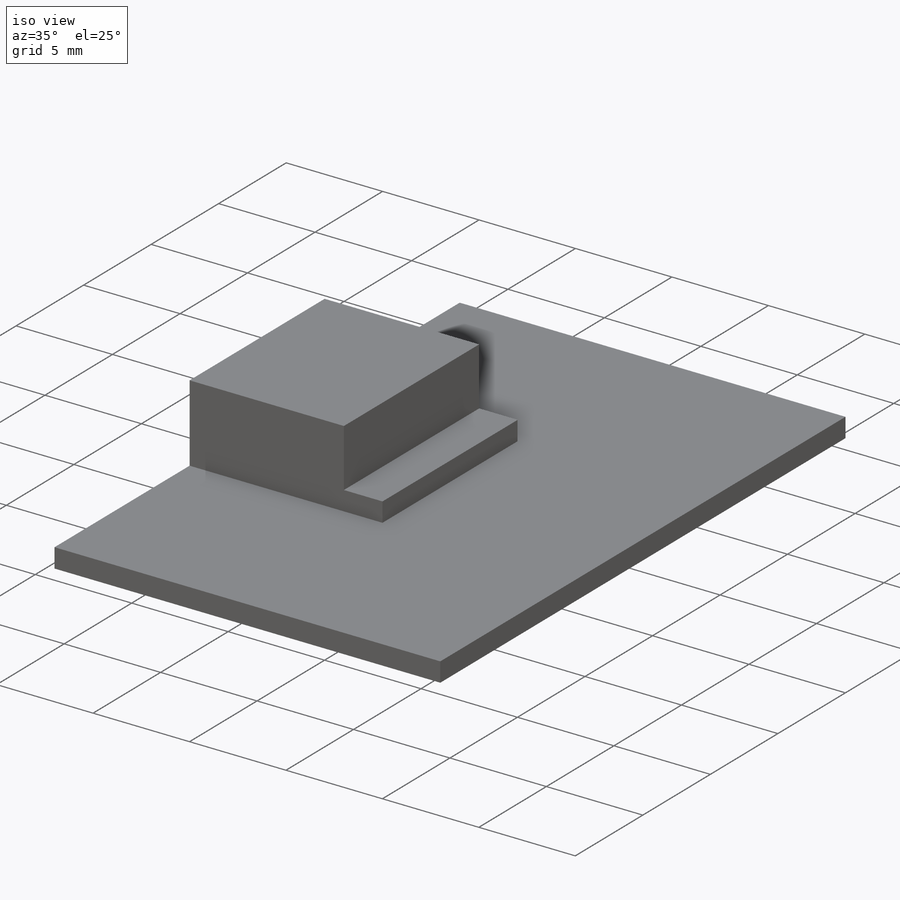
[diagram: iso view]
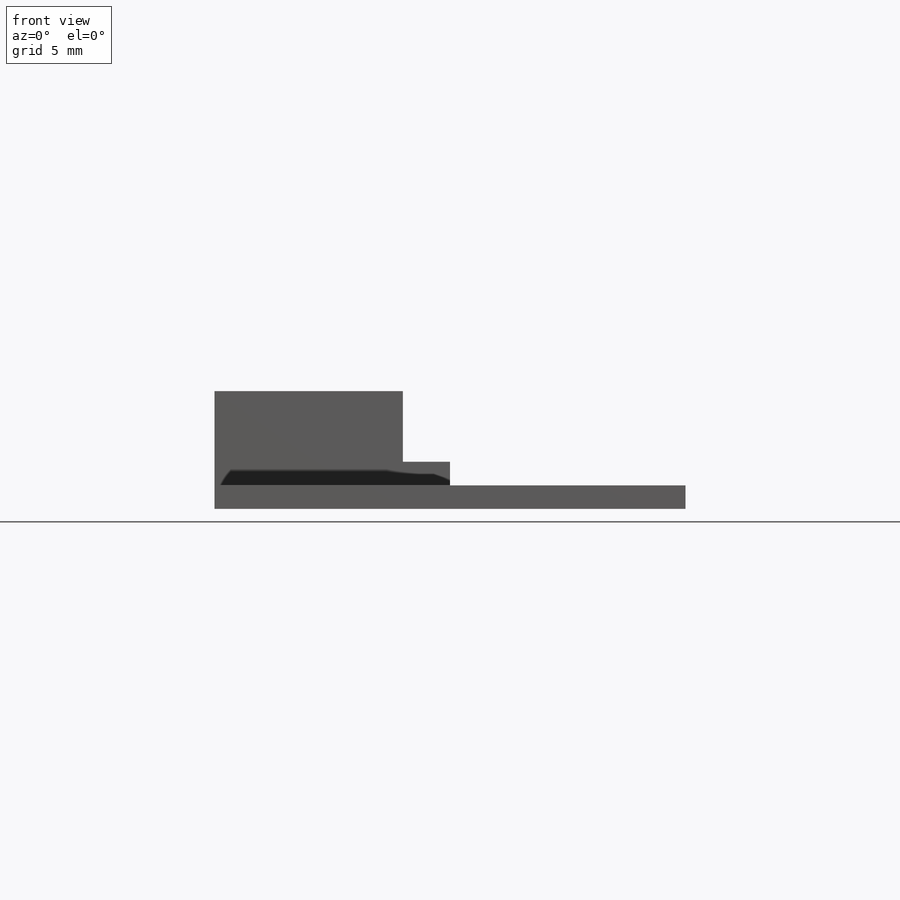
[diagram: front view]
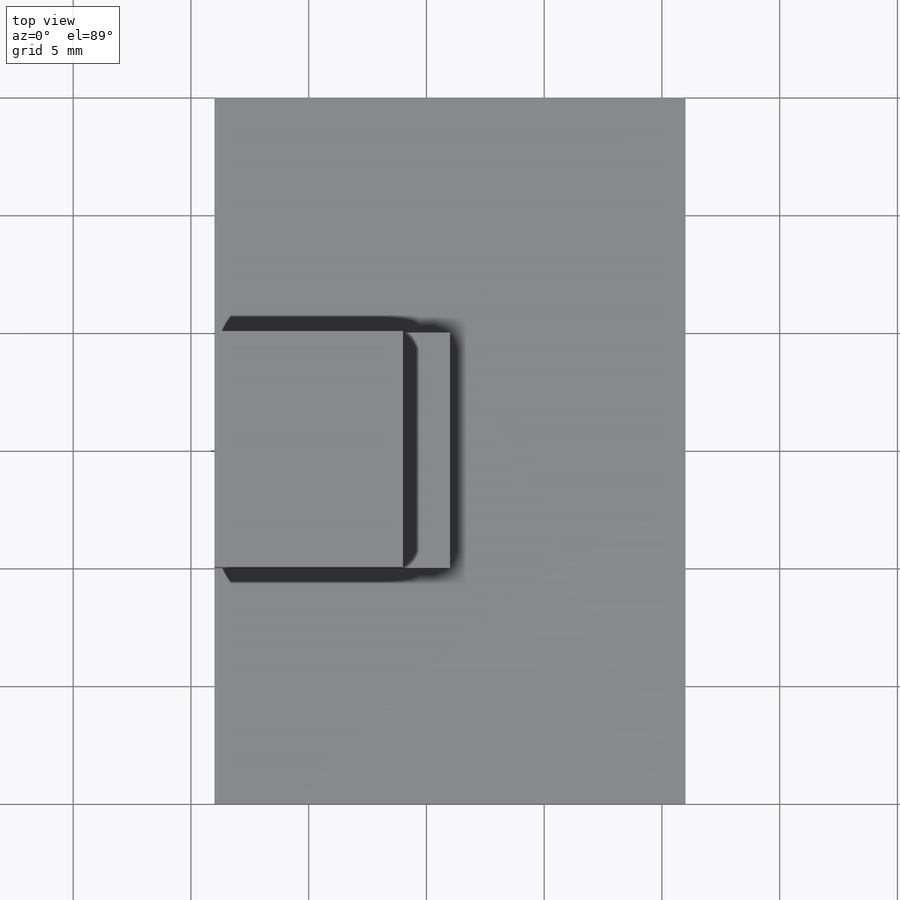
[diagram: top view]
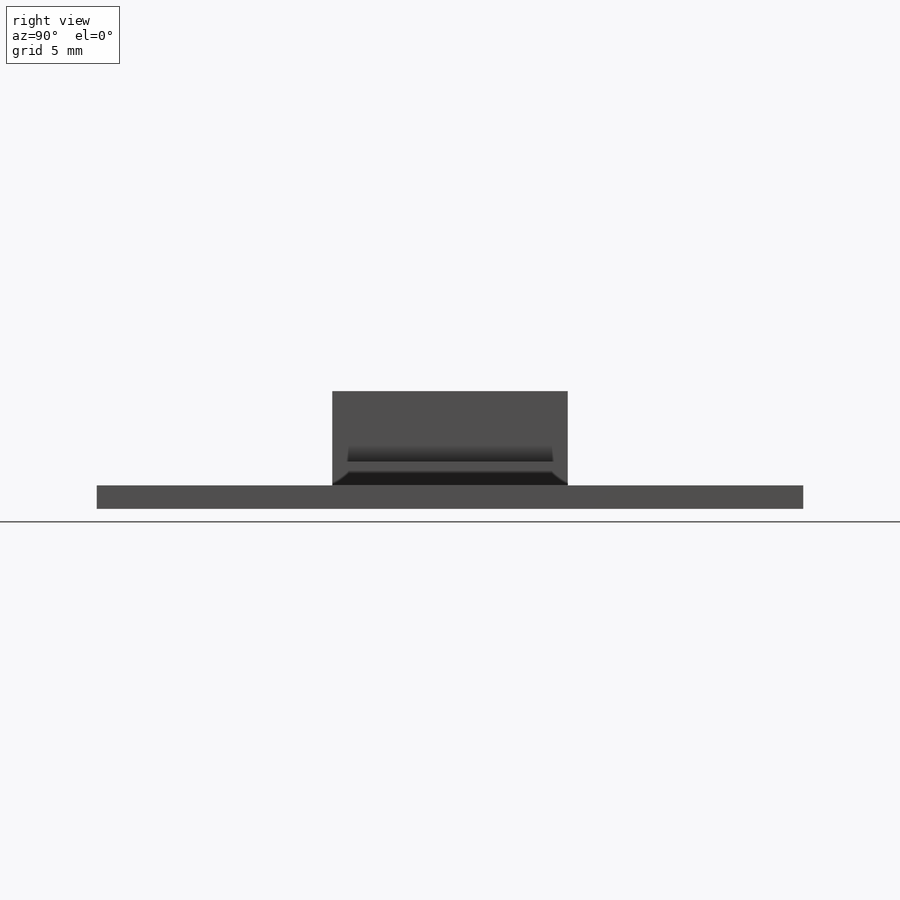
[diagram: right view]
SOLIDWORKS PART (.sldprt)
format: sldprt  version: not decoded by parser v0  size: 141,312 bytes
history: native  units: mm
features: sketch x4, plane x3, extrude x3, material x1 (+8 scaffold rows collapsed)
feature tree (19):
  scaffold x8  (default folders/planes/origin — collapsed)
  material  "Materiale <non specificato>"
  plane  "Piano frontale"
  plane  "Piano superiore"
  plane  "Piano destro"
  sketch  "Schizzo1"  dims[D1=8.0mm D2=10.0mm]
  extrude  "Estrusione-Estrusione1"  Depth=5mm
  sketch  "Schizzo2"  dims[D1=2.0mm]
  extrude  "Estrusione-Estrusione2"  Depth=2mm
  sketch  "Schizzo3"  dims[c1.D1=15.0mm c1.D2=~15.524255mm c2.D1=30.0mm c2.D2=15.0mm c2.D3=20.0mm]
  extrude  "Estrusione-Estrusione3"  Depth=1mm
  sketch  "Schizzo5"
decode coverage: 6 of 7 modeling features carry decoded parameters
note: ~ marks probable driven/reference dimensions
note: suppression state not decoded; provenance and decode notes live in map.json
